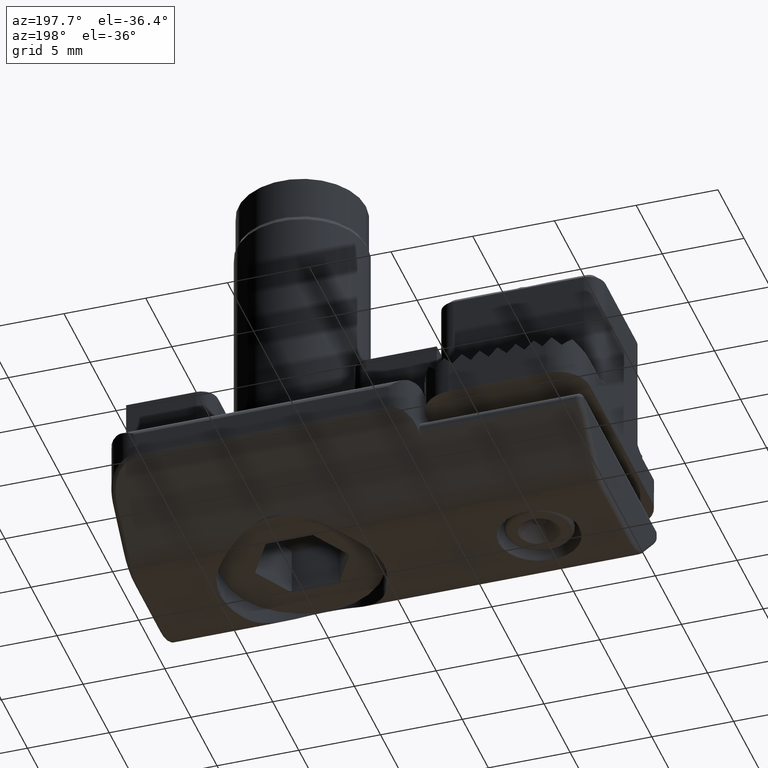
[diagram: clean part render]
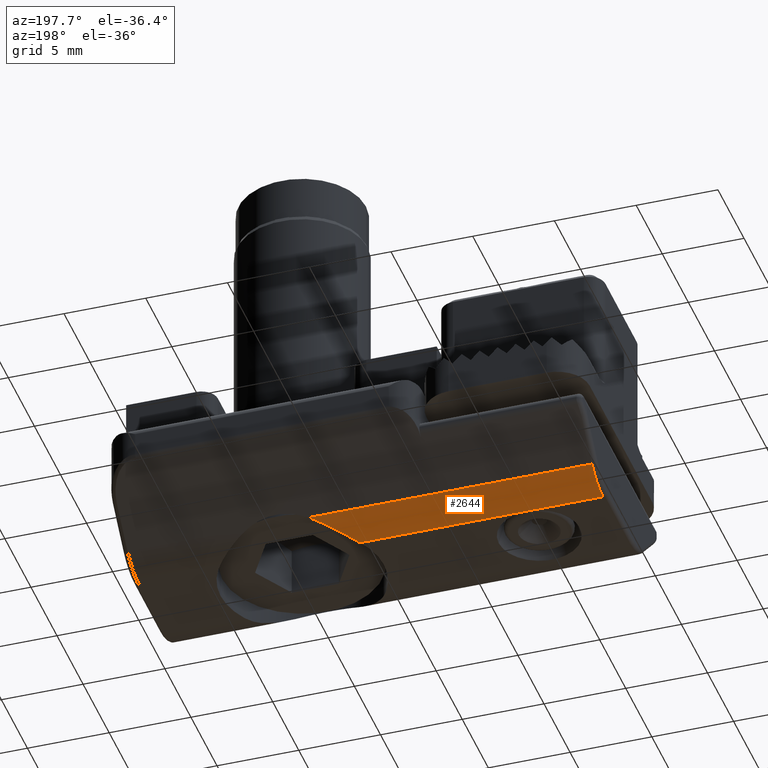
[diagram: same view with one face highlighted and labeled with its STEP entity id]
A machine part, auxiliary view. The second image highlights one B-rep face of the part: STEP entity #2644.
In plain terms, the highlighted cylindrical surface (partial cylindrical patch) has radius 3 mm, axis along (1, 0, 0).
Its self-contained STEP definition (entity closure, byte-faithful):
#101=DIRECTION('',(1.E0,-1.965788090853E-12,-1.965890716177E-12));
#102=VECTOR('',#101,1.730914711359E1);
#103=CARTESIAN_POINT('',(-1.92E1,4.628679656474E0,-1.112132034353E1));
#104=LINE('',#103,#102);
#1147=CARTESIAN_POINT('',(-1.92E1,2.507359312881E0,-9.E0));
#1148=DIRECTION('',(1.E0,0.E0,0.E0));
#1149=DIRECTION('',(0.E0,0.E0,-1.E0));
#1150=AXIS2_PLACEMENT_3D('',#1147,#1148,#1149);
#1155=DIRECTION('',(1.E0,3.616306737720E-12,0.E0));
#1156=VECTOR('',#1155,1.487413022895E1);
#1157=CARTESIAN_POINT('',(-1.92E1,2.507359312827E0,-1.2E1));
#1158=LINE('',#1157,#1156);
#1162=CARTESIAN_POINT('',(-1.890852886413E0,4.628679656440E0,
-1.112132034356E1));
#1163=CARTESIAN_POINT('',(-2.028574342249E0,4.572419333493E0,
-1.117758066651E1));
#1164=CARTESIAN_POINT('',(-2.298279733314E0,4.448020963863E0,
-1.129306315829E1));
#1165=CARTESIAN_POINT('',(-2.689981240546E0,4.222860109059E0,
-1.146706989455E1));
#1166=CARTESIAN_POINT('',(-3.062002241003E0,3.961505544355E0,
-1.163047347154E1));
#1167=CARTESIAN_POINT('',(-3.410512271399E0,3.665743408691E0,
-1.177414931108E1));
#1168=CARTESIAN_POINT('',(-3.730541928568E0,3.339750798183E0,
-1.188956475737E1));
#1169=CARTESIAN_POINT('',(-4.034010367195E0,2.968531335399E0,
-1.197383882165E1));
#1170=CARTESIAN_POINT('',(-4.232129591061E0,2.669086357296E0,-1.2E1));
#1171=CARTESIAN_POINT('',(-4.325869771053E0,2.507359312881E0,-1.2E1));
#1510=CARTESIAN_POINT('',(-4.325869771053E0,2.507359312881E0,-1.2E1));
#1511=VERTEX_POINT('',#1510);
#1515=VERTEX_POINT('',#1162);
#1588=CARTESIAN_POINT('',(-1.92E1,4.628679656474E0,-1.112132034353E1));
#1589=VERTEX_POINT('',#1588);
#1592=CARTESIAN_POINT('',(-1.92E1,2.507359312881E0,-1.2E1));
#1593=VERTEX_POINT('',#1592);
#2631=CARTESIAN_POINT('',(-1.95E1,2.507359312881E0,-9.E0));
#2632=DIRECTION('',(1.E0,0.E0,0.E0));
#2633=DIRECTION('',(0.E0,0.E0,-1.E0));
#2634=AXIS2_PLACEMENT_3D('',#2631,#2632,#2633);
#2635=CYLINDRICAL_SURFACE('',#2634,3.E0);
#2637=ORIENTED_EDGE('',*,*,#2636,.F.);
#2638=ORIENTED_EDGE('',*,*,#2115,.T.);
#2640=ORIENTED_EDGE('',*,*,#2639,.F.);
#2641=ORIENTED_EDGE('',*,*,#1719,.F.);
#2642=EDGE_LOOP('',(#2637,#2638,#2640,#2641));
#2643=FACE_OUTER_BOUND('',#2642,.F.);
#2644=ADVANCED_FACE('',(#2643),#2635,.T.);
#1151=CIRCLE('',#1150,3.E0);
#1172=B_SPLINE_CURVE_WITH_KNOTS('',3,(#1162,#1163,#1164,#1165,#1166,#1167,#1168,
#1169,#1170,#1171),.UNSPECIFIED.,.F.,.F.,(4,1,1,1,1,1,1,4),(0.E0,
1.428571428571E-1,2.857142857143E-1,4.285714285714E-1,5.714285714286E-1,
7.142857142857E-1,8.571428571429E-1,1.E0),.UNSPECIFIED.);
#1719=EDGE_CURVE('',#1589,#1515,#104,.T.);
#2115=EDGE_CURVE('',#1593,#1511,#1158,.T.);
#2636=EDGE_CURVE('',#1593,#1589,#1151,.T.);
#2639=EDGE_CURVE('',#1515,#1511,#1172,.T.);